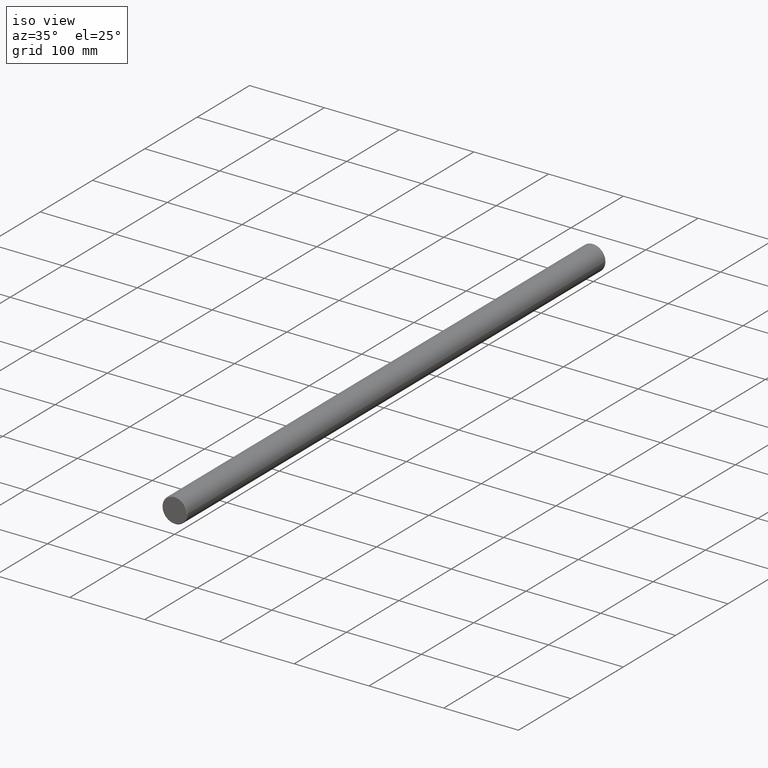
[diagram: clean part render]
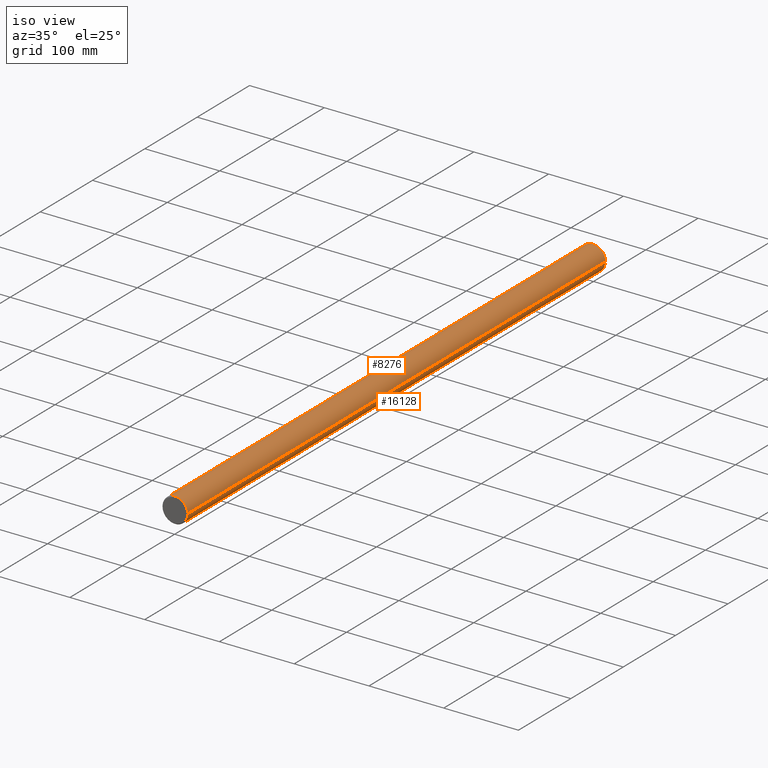
[diagram: same view with one multi-face feature highlighted, each face labeled with its STEP entity id]
A machine part, iso view. The highlighted faces form ONE feature: a constant-radius fillet chain: 2 tangent blend faces with common blend radius 16.85 mm. The faces share edges in the B-rep.
Their STEP definitions:
[1] entity #8276 (Cylinder):
#306 = ORIENTED_EDGE ( 'NONE', *, *, #13345, .T. ) ;
#746 = DIRECTION ( 'NONE',  ( -1.000000000000000000, 0.0000000000000000000, 0.0000000000000000000 ) ) ;
#996 = EDGE_CURVE ( 'NONE', #14909, #5115, #9176, .T. ) ;
#1112 = CARTESIAN_POINT ( 'NONE',  ( 6.704941225331760700E-014, -399.0000000000000000, 0.0000000000000000000 ) ) ;
#1167 = DIRECTION ( 'NONE',  ( -3.061616997868383600E-016, 1.000000000000000000, -0.0000000000000000000 ) ) ;
#1288 = AXIS2_PLACEMENT_3D ( 'NONE', #4371, #6885, #13147 ) ;
#1614 = CARTESIAN_POINT ( 'NONE',  ( 16.85000000000004100, -399.0000000000000000, 2.063529856563287100E-015 ) ) ;
#1859 = EDGE_CURVE ( 'NONE', #14909, #11980, #7615, .T. ) ;
#1868 = CARTESIAN_POINT ( 'NONE',  ( -16.85000000000027100, 400.0000000000000000, 0.0000000000000000000 ) ) ;
#1936 = DIRECTION ( 'NONE',  ( -3.061616997868383600E-016, 1.000000000000000000, -0.0000000000000000000 ) ) ;
#3646 = FACE_OUTER_BOUND ( 'NONE', #13549, .T. ) ;
#4371 = CARTESIAN_POINT ( 'NONE',  ( -1.775737858763662400E-013, 400.0000000000000000, 0.0000000000000000000 ) ) ;
#4399 = CARTESIAN_POINT ( 'NONE',  ( 16.84999999999991600, 400.0000000000000000, 2.063529856563301700E-015 ) ) ;
#4740 = VERTEX_POINT ( 'NONE', #9878 ) ;
#5034 = EDGE_CURVE ( 'NONE', #5115, #4740, #6611, .T. ) ;
#5098 = ORIENTED_EDGE ( 'NONE', *, *, #996, .F. ) ;
#5115 = VERTEX_POINT ( 'NONE', #8107 ) ;
#6611 = CIRCLE ( 'NONE', #10979, 16.85000000000021800 ) ;
#6861 = CARTESIAN_POINT ( 'NONE',  ( -1.772676241765793900E-013, 399.0000000000000000, 0.0000000000000000000 ) ) ;
#6885 = DIRECTION ( 'NONE',  ( -3.061616997868383600E-016, 1.000000000000000000, -0.0000000000000000000 ) ) ;
#7066 = VECTOR ( 'NONE', #9498, 1000.000000000000000 ) ;
#7279 = CARTESIAN_POINT ( 'NONE',  ( -16.84999999999990200, -399.0000000000000000, 0.0000000000000000000 ) ) ;
#7332 = AXIS2_PLACEMENT_3D ( 'NONE', #1112, #1167, #11127 ) ;
#7615 = CIRCLE ( 'NONE', #7332, 16.84999999999996900 ) ;
#8107 = CARTESIAN_POINT ( 'NONE',  ( -16.85000000000039600, 399.0000000000000000, 0.0000000000000000000 ) ) ;
#8276 = ADVANCED_FACE ( 'NONE', ( #3646 ), #13195, .T. ) ;
#9176 = LINE ( 'NONE', #1868, #7066 ) ;
#9498 = DIRECTION ( 'NONE',  ( -3.061616997868383600E-016, 1.000000000000000000, -0.0000000000000000000 ) ) ;
#9727 = ORIENTED_EDGE ( 'NONE', *, *, #5034, .F. ) ;
#9762 = ORIENTED_EDGE ( 'NONE', *, *, #1859, .T. ) ;
#9878 = CARTESIAN_POINT ( 'NONE',  ( 16.85000000000004100, 399.0000000000000000, 2.063529856563309200E-015 ) ) ;
#10979 = AXIS2_PLACEMENT_3D ( 'NONE', #6861, #1936, #746 ) ;
#11127 = DIRECTION ( 'NONE',  ( -1.000000000000000000, 0.0000000000000000000, 0.0000000000000000000 ) ) ;
#11980 = VERTEX_POINT ( 'NONE', #1614 ) ;
#12732 = LINE ( 'NONE', #4399, #13726 ) ;
#13147 = DIRECTION ( 'NONE',  ( -1.000000000000000000, 0.0000000000000000000, 0.0000000000000000000 ) ) ;
#13195 = CYLINDRICAL_SURFACE ( 'NONE', #1288, 16.85000000000009400 ) ;
#13345 = EDGE_CURVE ( 'NONE', #11980, #4740, #12732, .T. ) ;
#13549 = EDGE_LOOP ( 'NONE', ( #9762, #306, #9727, #5098 ) ) ;
#13726 = VECTOR ( 'NONE', #15625, 1000.000000000000000 ) ;
#14909 = VERTEX_POINT ( 'NONE', #7279 ) ;
#15625 = DIRECTION ( 'NONE',  ( -3.061616997868383600E-016, 1.000000000000000000, -0.0000000000000000000 ) ) ;
[2] entity #16128 (Cylinder):
#26 = VERTEX_POINT ( 'NONE', #12804 ) ;
#187 = CARTESIAN_POINT ( 'NONE',  ( 2.111181486685333100, -296.5271572055895600, -16.71880123224790200 ) ) ;
#294 = CARTESIAN_POINT ( 'NONE',  ( -4.103947168860153200, -299.0908941275207600, -16.34260954227791300 ) ) ;
#411 = CARTESIAN_POINT ( 'NONE',  ( 3.421433407392513400, -297.6624604103815300, -16.49916290399396600 ) ) ;
#650 = DIRECTION ( 'NONE',  ( -1.000000000000000000, 0.0000000000000000000, 0.0000000000000000000 ) ) ;
#652 = CARTESIAN_POINT ( 'NONE',  ( -2.457226800056763900, -303.2530992258033400, -16.67027337817341600 ) ) ;
#691 = CARTESIAN_POINT ( 'NONE',  ( -3.343415596068267000, 302.4374141581043300, -16.51520715119603000 ) ) ;
#739 = CARTESIAN_POINT ( 'NONE',  ( -2.112323123485771300, 296.5275863024637600, -16.71868724575025300 ) ) ;
#749 = CARTESIAN_POINT ( 'NONE',  ( 1.869556207913566400, 303.5959342370351200, -16.74793927532961700 ) ) ;
#996 = EDGE_CURVE ( 'NONE', #14909, #5115, #9176, .T. ) ;
#1104 = CARTESIAN_POINT ( 'NONE',  ( -3.652583352763586700, -302.0096524374241100, -16.45009180361355300 ) ) ;
#1357 = B_SPLINE_CURVE_WITH_KNOTS ( 'NONE', 3,
 ( #15121, #5309, #1480, #13968, #11625, #2726, #12666, #411, #15283, #10250, #14026, #2778, #9010, #187, #11398, #9113, #8902, #13915, #11511, #1642, #4099, #3936, #13866, #2669, #5148, #8956, #6564, #7759, #11449, #5252, #2887, #12822, #1432, #10363, #5362, #10143, #3988, #15230, #294, #10569, #9377, #2938 ),
 .UNSPECIFIED., .F., .F.,
 ( 4, 2, 2, 2, 2, 2, 2, 2, 2, 2, 2, 2, 2, 2, 2, 2, 2, 2, 2, 2, 4 ),
 ( 0.5000000000000000000, 0.5625000000000067700, 0.5781250000000085500, 0.5937500000000102100, 0.6093750000000118800, 0.6250000000000136600, 0.6562500000000126600, 0.6875000000000117700, 0.7187500000000108800, 0.7343750000000109900, 0.7500000000000111000, 0.7812500000000113200, 0.8125000000000115500, 0.8750000000000097700, 0.8906250000000093300, 0.9062500000000089900, 0.9218750000000086600, 0.9375000000000082200, 0.9531250000000077700, 0.9687500000000073300, 1.000000000000000000 ),
 .UNSPECIFIED. ) ;
#1386 = CARTESIAN_POINT ( 'NONE',  ( -1.775737858763662400E-013, 400.0000000000000000, 0.0000000000000000000 ) ) ;
#1432 = CARTESIAN_POINT ( 'NONE',  ( -3.649451941649635600, -297.9979308237474200, -16.45017936633611200 ) ) ;
#1480 = CARTESIAN_POINT ( 'NONE',  ( 4.099798510977332300, -298.9449125589744100, -16.34507024211131200 ) ) ;
#1614 = CARTESIAN_POINT ( 'NONE',  ( 16.85000000000004100, -399.0000000000000000, 2.063529856563287100E-015 ) ) ;
#1642 = CARTESIAN_POINT ( 'NONE',  ( 0.2747739666639554300, -296.0041477002215500, -16.84833002262523700 ) ) ;
#1781 = CARTESIAN_POINT ( 'NONE',  ( 3.574024045816244700, 302.1213676934745000, -16.46678278273489200 ) ) ;
#1868 = CARTESIAN_POINT ( 'NONE',  ( -16.85000000000027100, 400.0000000000000000, 0.0000000000000000000 ) ) ;
#1884 = CARTESIAN_POINT ( 'NONE',  ( -4.211731938987181700, 300.2623335797599700, -16.31514063911554400 ) ) ;
#1896 = CARTESIAN_POINT ( 'NONE',  ( 3.677872854701254500, -302.0199067356595000, -16.44516054835496600 ) ) ;
#1926 = CARTESIAN_POINT ( 'NONE',  ( -3.994873032400434900, 298.7055048424176700, -16.36995244405527600 ) ) ;
#1954 = CARTESIAN_POINT ( 'NONE',  ( -1.097146856392437800, -303.8730125779264900, -16.81645739557807700 ) ) ;
#1994 = CARTESIAN_POINT ( 'NONE',  ( -4.211731908247671200, 300.0000000000000600, -16.31514064705091000 ) ) ;
#2043 = CYLINDRICAL_SURFACE ( 'NONE', #10609, 16.85000000000009400 ) ;
#2130 = EDGE_CURVE ( 'NONE', #11980, #14909, #11303, .T. ) ;
#2247 = CARTESIAN_POINT ( 'NONE',  ( 0.6905363500577163000, 296.0497870226107000, -16.83639047889612400 ) ) ;
#2279 = CARTESIAN_POINT ( 'NONE',  ( 0.5520275914704813000, -303.9698644482218700, -16.84152510344907900 ) ) ;
#2415 = CARTESIAN_POINT ( 'NONE',  ( 3.989646332241385100, 298.7108447483342400, -16.37091737067779800 ) ) ;
#2614 = FACE_BOUND ( 'NONE', #5942, .T. ) ;
#2669 = CARTESIAN_POINT ( 'NONE',  ( -1.097480646680365900, -296.1271089799185500, -16.81642323779277600 ) ) ;
#2726 = CARTESIAN_POINT ( 'NONE',  ( 3.646142116068225500, -297.9924181663868700, -16.45091569020009500 ) ) ;
#2748 = DIRECTION ( 'NONE',  ( -1.000000000000000000, 0.0000000000000000000, 0.0000000000000000000 ) ) ;
#2778 = CARTESIAN_POINT ( 'NONE',  ( 2.781228554226494500, -296.9831026624416400, -16.62006782659087600 ) ) ;
#2849 = ORIENTED_EDGE ( 'NONE', *, *, #11010, .T. ) ;
#2887 = CARTESIAN_POINT ( 'NONE',  ( -3.425803771964347700, -297.6682079303274700, -16.49825689635584100 ) ) ;
#2938 = CARTESIAN_POINT ( 'NONE',  ( -4.211731908247676500, -299.9999999999999400, -16.31514064705086400 ) ) ;
#3126 = CARTESIAN_POINT ( 'NONE',  ( 3.835645768217373700, 301.6582906261951400, -16.40771981740229900 ) ) ;
#3182 = CARTESIAN_POINT ( 'NONE',  ( -3.167954837094653100, 302.6405675010050800, -16.54976003587597700 ) ) ;
#3195 = CARTESIAN_POINT ( 'NONE',  ( -1.360069311882699200, -303.7967521877352500, -16.79695426023073100 ) ) ;
#3235 = CARTESIAN_POINT ( 'NONE',  ( 3.646142115845147500, 302.0075818340083600, -16.45091569025041900 ) ) ;
#3337 = CARTESIAN_POINT ( 'NONE',  ( -0.5520148729234746200, 296.0235486262704400, -16.84316627419239900 ) ) ;
#3480 = CARTESIAN_POINT ( 'NONE',  ( 4.211730070169731600, -299.9962609295603200, -16.31514112154815500 ) ) ;
#3618 = CARTESIAN_POINT ( 'NONE',  ( 3.368925212262617200, 297.5413840653018800, -16.51454889790687400 ) ) ;
#3739 = CARTESIAN_POINT ( 'NONE',  ( -4.211731908247676500, -299.9999999999999400, -16.31514064705086400 ) ) ;
#3936 = CARTESIAN_POINT ( 'NONE',  ( -0.2800285627190733900, -295.9980360726415300, -16.84994530848567300 ) ) ;
#3988 = CARTESIAN_POINT ( 'NONE',  ( -3.989226575724543100, -298.7096218303249800, -16.37102020510795700 ) ) ;
#4099 = CARTESIAN_POINT ( 'NONE',  ( 0.1350485468165462100, -295.9977072282336500, -16.85002685795276300 ) ) ;
#4112 = VERTEX_POINT ( 'NONE', #9051 ) ;
#4295 = CARTESIAN_POINT ( 'NONE',  ( 3.776710975185721100, 301.7762612723548700, -16.42143214176458700 ) ) ;
#4318 = ORIENTED_EDGE ( 'NONE', *, *, #13345, .F. ) ;
#4399 = CARTESIAN_POINT ( 'NONE',  ( 16.84999999999991600, 400.0000000000000000, 2.063529856563301700E-015 ) ) ;
#4454 = CARTESIAN_POINT ( 'NONE',  ( -3.649451941342694000, 302.0020691769537400, -16.45017936640552100 ) ) ;
#4515 = CARTESIAN_POINT ( 'NONE',  ( 0.6869442775572899300, 303.9507671837440100, -16.83653606110369300 ) ) ;
#4558 = CARTESIAN_POINT ( 'NONE',  ( -3.783003678030937500, 298.2213061282358800, -16.42020818192132500 ) ) ;
#4614 = CARTESIAN_POINT ( 'NONE',  ( -0.2757959028349583100, 295.9978021208039000, -16.85000435249000700 ) ) ;
#4722 = CARTESIAN_POINT ( 'NONE',  ( -3.994873033460188100, -301.2944951553143400, -16.36995244380385700 ) ) ;
#4740 = VERTEX_POINT ( 'NONE', #9878 ) ;
#4811 = CARTESIAN_POINT ( 'NONE',  ( -2.879311326718003300, -302.9237658552129300, -16.60246212192669900 ) ) ;
#5115 = VERTEX_POINT ( 'NONE', #8107 ) ;
#5148 = CARTESIAN_POINT ( 'NONE',  ( -1.365344542615122500, -296.2049720826693100, -16.79652281685951100 ) ) ;
#5252 = CARTESIAN_POINT ( 'NONE',  ( -3.343415595765952400, -297.5625858413893100, -16.51520715125553500 ) ) ;
#5309 = CARTESIAN_POINT ( 'NONE',  ( 4.211286680376375100, -299.4730413855847900, -16.31525558198166700 ) ) ;
#5362 = CARTESIAN_POINT ( 'NONE',  ( -3.837042047219045800, -298.3445888232237200, -16.40739376037549500 ) ) ;
#5375 = VERTEX_POINT ( 'NONE', #11462 ) ;
#5558 = CARTESIAN_POINT ( 'NONE',  ( -3.942944516357560500, 301.4129517472178500, -16.38226633348003600 ) ) ;
#5600 = CARTESIAN_POINT ( 'NONE',  ( -4.183843855257118900, -300.5289064550839300, -16.32240945880809600 ) ) ;
#5615 = CARTESIAN_POINT ( 'NONE',  ( -3.837042047125988300, 301.6554111769892200, -16.40739376039762500 ) ) ;
#5666 = CARTESIAN_POINT ( 'NONE',  ( 0.2747739674841348000, 303.9958522996234900, -16.84833002260510100 ) ) ;
#5709 = CARTESIAN_POINT ( 'NONE',  ( -2.457226799433099600, 296.7469007739565500, -16.67027337826099000 ) ) ;
#5717 = CARTESIAN_POINT ( 'NONE',  ( 2.566736432232959300, 303.1837576114682500, -16.65494719288221500 ) ) ;
#5731 = CARTESIAN_POINT ( 'NONE',  ( 0.1382966407311987700, -304.0021776382146200, -16.84999782061066400 ) ) ;
#5770 = CARTESIAN_POINT ( 'NONE',  ( -3.989226575677383500, 301.2903781699001800, -16.37102020511962100 ) ) ;
#5813 = CARTESIAN_POINT ( 'NONE',  ( -1.360069313369782300, 296.2032478128508600, -16.79695426008766300 ) ) ;
#5942 = EDGE_LOOP ( 'NONE', ( #14973, #11686 ) ) ;
#5973 = CARTESIAN_POINT ( 'NONE',  ( 4.070030691089805000, 298.9622439762677000, -16.35111811429158000 ) ) ;
#6002 = CARTESIAN_POINT ( 'NONE',  ( -2.566103787678432700, -303.1762376375224300, -16.65380172238982200 ) ) ;
#6035 = B_SPLINE_CURVE_WITH_KNOTS ( 'NONE', 3,
 ( #3739, #6100, #5600, #12025, #4722, #14861, #1104, #11871, #14761, #16017, #14783, #4811, #14728, #6002, #652, #9746, #14393, #3195, #1954, #7374, #7321, #5731, #8568, #2279, #13529, #8238, #12278, #9366, #6932, #8517, #11006, #10951, #1896, #10666, #13475, #8126, #11940, #7270, #15985, #3480 ),
 .UNSPECIFIED., .F., .F.,
 ( 4, 2, 2, 2, 2, 2, 2, 2, 2, 2, 2, 2, 2, 2, 2, 2, 2, 2, 2, 4 ),
 ( 0.0000000000000000000, 0.03124999999999707900, 0.06249999999999415700, 0.09374999999999122900, 0.1093749999999897900, 0.1249999999999883400, 0.1406249999999868700, 0.1562499999999854300, 0.1874999999999859300, 0.2187499999999864800, 0.2499999999999870100, 0.2656249999999872900, 0.2812499999999875100, 0.3124999999999892900, 0.3437499999999910100, 0.3749999999999927300, 0.4374999999999961700, 0.4531249999999955600, 0.4687499999999949500, 0.5000000000000000000 ),
 .UNSPECIFIED. ) ;
#6100 = CARTESIAN_POINT ( 'NONE',  ( -4.211731877233189500, -300.2646802924342600, -16.31514065505721700 ) ) ;
#6136 = EDGE_CURVE ( 'NONE', #7399, #5375, #7727, .T. ) ;
#6417 = ORIENTED_EDGE ( 'NONE', *, *, #2130, .T. ) ;
#6564 = CARTESIAN_POINT ( 'NONE',  ( -2.592800542262584200, -296.8033723857111600, -16.65397137311018500 ) ) ;
#6593 = CARTESIAN_POINT ( 'NONE',  ( 4.211286680376009200, 300.5269586149625000, -16.31525558198171300 ) ) ;
#6738 = FACE_OUTER_BOUND ( 'NONE', #8279, .T. ) ;
#6810 = CARTESIAN_POINT ( 'NONE',  ( 3.074238659154786100, 302.7387534980939600, -16.56748029647851400 ) ) ;
#6864 = CARTESIAN_POINT ( 'NONE',  ( -4.103947168852170300, 300.9091058725173300, -16.34260954227997700 ) ) ;
#6893 = EDGE_CURVE ( 'NONE', #26, #4112, #6035, .T. ) ;
#6918 = CARTESIAN_POINT ( 'NONE',  ( -0.2800285560951958400, 304.0019639276731000, -16.84994530848697300 ) ) ;
#6930 = DIRECTION ( 'NONE',  ( -3.061616997868383600E-016, 1.000000000000000000, -0.0000000000000000000 ) ) ;
#6932 = CARTESIAN_POINT ( 'NONE',  ( 2.116314076581926600, -303.4700144356096400, -16.71814975680066700 ) ) ;
#6964 = CARTESIAN_POINT ( 'NONE',  ( -4.075885968895653900, 298.9583794951362300, -16.34970193963102900 ) ) ;
#6976 = CARTESIAN_POINT ( 'NONE',  ( -4.184601887960512000, 300.5237576506187300, -16.32221440564561000 ) ) ;
#7028 = CARTESIAN_POINT ( 'NONE',  ( -2.566103789862940400, 296.8237623640256400, -16.65380172203901000 ) ) ;
#7066 = VECTOR ( 'NONE', #9498, 1000.000000000000000 ) ;
#7081 = CARTESIAN_POINT ( 'NONE',  ( -4.183843855718064800, 299.4710935466394500, -16.32240945869161700 ) ) ;
#7182 = CARTESIAN_POINT ( 'NONE',  ( -2.777870329694211500, 296.9889213583802000, -16.61979051879845700 ) ) ;
#7235 = CARTESIAN_POINT ( 'NONE',  ( 1.870609913084710300, 296.4045933130740300, -16.74781125527563600 ) ) ;
#7270 = CARTESIAN_POINT ( 'NONE',  ( 4.185015913676439300, -300.5221823758678300, -16.32211057644185500 ) ) ;
#7279 = CARTESIAN_POINT ( 'NONE',  ( -16.84999999999990200, -399.0000000000000000, 0.0000000000000000000 ) ) ;
#7321 = CARTESIAN_POINT ( 'NONE',  ( -0.2757959077698745000, -304.0021978795078900, -16.85000435249007800 ) ) ;
#7344 = CARTESIAN_POINT ( 'NONE',  ( 4.211730070169751100, 300.0037390704396200, -16.31514112154810200 ) ) ;
#7374 = CARTESIAN_POINT ( 'NONE',  ( -0.5520148696959600300, -303.9764513740315700, -16.84316627435052600 ) ) ;
#7399 = VERTEX_POINT ( 'NONE', #15855 ) ;
#7400 = CARTESIAN_POINT ( 'NONE',  ( 2.783036976765235000, 296.9846195971642300, -16.61976461273604500 ) ) ;
#7727 = B_SPLINE_CURVE_WITH_KNOTS ( 'NONE', 3,
 ( #8267, #10812, #7081, #6964, #1926, #4558, #14425, #13172, #8375, #10699, #9608, #14639, #7182, #7028, #5709, #739, #13286, #5813, #8215, #3337, #4614, #12083, #13340, #9821, #2247, #13550, #8481, #7235, #11021, #9874, #7400, #3618, #10974, #12354, #2415, #5973, #16063, #13442, #16008, #7344 ),
 .UNSPECIFIED., .F., .F.,
 ( 4, 2, 2, 2, 2, 2, 2, 2, 2, 2, 2, 2, 2, 2, 2, 2, 2, 2, 2, 4 ),
 ( 0.0000000000000000000, 0.03124999999999923700, 0.06249999999999847300, 0.09374999999999771000, 0.1093749999999973400, 0.1249999999999969700, 0.1406249999999965900, 0.1562499999999962000, 0.1874999999999954800, 0.2187499999999947500, 0.2499999999999940600, 0.2656249999999936700, 0.2812499999999932800, 0.3124999999999937300, 0.3437499999999942300, 0.3749999999999946700, 0.4374999999999911700, 0.4531249999999918400, 0.4687499999999924500, 0.5000000000000000000 ),
 .UNSPECIFIED. ) ;
#7759 = CARTESIAN_POINT ( 'NONE',  ( -3.076975924927034500, -297.2640654838056100, -16.56696710261696400 ) ) ;
#8107 = CARTESIAN_POINT ( 'NONE',  ( -16.85000000000039600, 399.0000000000000000, 0.0000000000000000000 ) ) ;
#8109 = CARTESIAN_POINT ( 'NONE',  ( 0.1350485435046242200, 304.0022927716089500, -16.85002685795210600 ) ) ;
#8126 = CARTESIAN_POINT ( 'NONE',  ( 4.070030691137408700, -301.0377560235054400, -16.35111811427989500 ) ) ;
#8167 = CARTESIAN_POINT ( 'NONE',  ( -2.125748108832351300, 303.4942039916982100, -16.72312987456216100 ) ) ;
#8215 = CARTESIAN_POINT ( 'NONE',  ( -1.097146853164901800, 296.1269874217713900, -16.81645739573622600 ) ) ;
#8224 = CARTESIAN_POINT ( 'NONE',  ( 3.165549653021565200, 302.6431096412110300, -16.55021605181869000 ) ) ;
#8238 = CARTESIAN_POINT ( 'NONE',  ( 1.096819130879199700, -303.8729821233462800, -16.81645108304907100 ) ) ;
#8267 = CARTESIAN_POINT ( 'NONE',  ( -4.211731908247671200, 300.0000000000000600, -16.31514064705091000 ) ) ;
#8279 = EDGE_LOOP ( 'NONE', ( #4318, #6417, #9077, #12692 ) ) ;
#8375 = CARTESIAN_POINT ( 'NONE',  ( -3.341774473356414500, 297.5605835245967800, -16.51553835158221500 ) ) ;
#8481 = CARTESIAN_POINT ( 'NONE',  ( 1.359696503220244600, 296.2030086396124500, -16.79701130285975800 ) ) ;
#8517 = CARTESIAN_POINT ( 'NONE',  ( 2.571482479504557900, -303.1803078003434300, -16.65421251272945100 ) ) ;
#8568 = CARTESIAN_POINT ( 'NONE',  ( 0.2749665287091289100, -303.9958346357527100, -16.84832619816995000 ) ) ;
#8635 = EDGE_CURVE ( 'NONE', #4740, #5115, #14364, .T. ) ;
#8869 = FACE_BOUND ( 'NONE', #13171, .T. ) ;
#8902 = CARTESIAN_POINT ( 'NONE',  ( 1.092724771750999100, -296.1259879554684200, -16.81671217814151100 ) ) ;
#8956 = CARTESIAN_POINT ( 'NONE',  ( -2.125748114341859700, -296.5057960107914100, -16.72312987403037000 ) ) ;
#9010 = CARTESIAN_POINT ( 'NONE',  ( 2.566736438452071700, -296.8162423924782200, -16.65494719201052100 ) ) ;
#9051 = CARTESIAN_POINT ( 'NONE',  ( 4.211730070169731600, -299.9962609295603200, -16.31514112154815500 ) ) ;
#9077 = ORIENTED_EDGE ( 'NONE', *, *, #996, .T. ) ;
#9113 = CARTESIAN_POINT ( 'NONE',  ( 1.357293242190989100, -296.2021730081117400, -16.79721600268887400 ) ) ;
#9176 = LINE ( 'NONE', #1868, #7066 ) ;
#9351 = CARTESIAN_POINT ( 'NONE',  ( -3.578748845347892200, 302.1142035424703600, -16.46575746220369400 ) ) ;
#9366 = CARTESIAN_POINT ( 'NONE',  ( 1.870609915822458100, -303.5954066856897400, -16.74781125501201400 ) ) ;
#9377 = CARTESIAN_POINT ( 'NONE',  ( -4.211731938987186100, -299.7376664201617000, -16.31514063911549100 ) ) ;
#9391 = ORIENTED_EDGE ( 'NONE', *, *, #6893, .T. ) ;
#9403 = CARTESIAN_POINT ( 'NONE',  ( -3.425803771740272300, 302.3317920699138900, -16.49825689640349000 ) ) ;
#9460 = CARTESIAN_POINT ( 'NONE',  ( -3.076975926074878100, 302.7359345150246100, -16.56696710241074700 ) ) ;
#9498 = DIRECTION ( 'NONE',  ( -3.061616997868383600E-016, 1.000000000000000000, -0.0000000000000000000 ) ) ;
#9608 = CARTESIAN_POINT ( 'NONE',  ( -3.073013874974670500, 297.2600589085209300, -16.56770255498300400 ) ) ;
#9746 = CARTESIAN_POINT ( 'NONE',  ( -2.112323122238555200, -303.4724136980166200, -16.71868724592529500 ) ) ;
#9821 = CARTESIAN_POINT ( 'NONE',  ( 0.5520275898696536100, 296.0301355515520100, -16.84152510348836900 ) ) ;
#9874 = CARTESIAN_POINT ( 'NONE',  ( 2.571482479507090500, 296.8196921995031500, -16.65421251272906400 ) ) ;
#9878 = CARTESIAN_POINT ( 'NONE',  ( 16.85000000000004100, 399.0000000000000000, 2.063529856563309200E-015 ) ) ;
#9992 = DIRECTION ( 'NONE',  ( -3.061616997868383600E-016, 1.000000000000000000, -0.0000000000000000000 ) ) ;
#10143 = CARTESIAN_POINT ( 'NONE',  ( -3.942944516264483800, -298.5870482525691600, -16.38226633350208100 ) ) ;
#10167 = CARTESIAN_POINT ( 'NONE',  ( -1.772676241765793900E-013, 399.0000000000000000, 0.0000000000000000000 ) ) ;
#10226 = CARTESIAN_POINT ( 'NONE',  ( 4.211730070169751100, 300.0037390704396200, -16.31514112154810200 ) ) ;
#10250 = CARTESIAN_POINT ( 'NONE',  ( 3.165549652640385700, -297.3568903582710700, -16.55021605189371000 ) ) ;
#10363 = CARTESIAN_POINT ( 'NONE',  ( -3.778863592179800600, -298.2279180770635800, -16.42093452306349400 ) ) ;
#10488 = CARTESIAN_POINT ( 'NONE',  ( -1.097480643418780300, 303.8728910210130600, -16.81642323795280800 ) ) ;
#10569 = CARTESIAN_POINT ( 'NONE',  ( -4.184601887944555900, -299.4762423493049300, -16.32221440564960300 ) ) ;
#10609 = AXIS2_PLACEMENT_3D ( 'NONE', #1386, #9992, #13669 ) ;
#10655 = CARTESIAN_POINT ( 'NONE',  ( 1.092724771740884800, 303.8740120443779300, -16.81671217814199100 ) ) ;
#10666 = CARTESIAN_POINT ( 'NONE',  ( 3.943095795867154000, -301.4125843570395200, -16.38223024138962500 ) ) ;
#10699 = CARTESIAN_POINT ( 'NONE',  ( -3.166655777989681100, 297.3580324217032300, -16.55000769960799500 ) ) ;
#10812 = CARTESIAN_POINT ( 'NONE',  ( -4.211731877233183300, 299.7353197074494300, -16.31514065505726000 ) ) ;
#10951 = CARTESIAN_POINT ( 'NONE',  ( 3.368925216828674100, -302.4586159294258300, -16.51454889708693600 ) ) ;
#10974 = CARTESIAN_POINT ( 'NONE',  ( 3.677872855448571800, 297.9800932663617900, -16.44516054817760400 ) ) ;
#11006 = CARTESIAN_POINT ( 'NONE',  ( 2.783036974482174600, -303.0153804054718900, -16.61976461314607400 ) ) ;
#11010 = EDGE_CURVE ( 'NONE', #4112, #26, #1357, .T. ) ;
#11021 = CARTESIAN_POINT ( 'NONE',  ( 2.116314076579441900, 296.5299855645438900, -16.71814975680099000 ) ) ;
#11303 = CIRCLE ( 'NONE', #14849, 16.84999999999996900 ) ;
#11398 = CARTESIAN_POINT ( 'NONE',  ( 1.869556211022509500, -296.4040657640185800, -16.74793927503056800 ) ) ;
#11449 = CARTESIAN_POINT ( 'NONE',  ( -3.167954837396979300, -297.3594324995012800, -16.54976003581640500 ) ) ;
#11462 = CARTESIAN_POINT ( 'NONE',  ( 4.211730070169751100, 300.0037390704396200, -16.31514112154810200 ) ) ;
#11511 = CARTESIAN_POINT ( 'NONE',  ( 0.5520010403882879000, -296.0301326776418600, -16.84152665691151200 ) ) ;
#11534 = DIRECTION ( 'NONE',  ( -3.061616997868383600E-016, 1.000000000000000000, -0.0000000000000000000 ) ) ;
#11625 = CARTESIAN_POINT ( 'NONE',  ( 3.776710974962599600, -298.2237387272497200, -16.42143214181500700 ) ) ;
#11686 = ORIENTED_EDGE ( 'NONE', *, *, #12101, .T. ) ;
#11811 = CARTESIAN_POINT ( 'NONE',  ( -1.365344545369881600, 303.7950279160859300, -16.79652281659364400 ) ) ;
#11867 = CARTESIAN_POINT ( 'NONE',  ( 2.781228556084602400, 303.0168973361068700, -16.62006782625735800 ) ) ;
#11871 = CARTESIAN_POINT ( 'NONE',  ( -3.423453887775302000, -302.3348839834259800, -16.49874419015969500 ) ) ;
#11924 = CARTESIAN_POINT ( 'NONE',  ( -2.592800537671176900, 303.1966276189690500, -16.65397137393527400 ) ) ;
#11940 = CARTESIAN_POINT ( 'NONE',  ( 4.103373155838955500, -300.9116456906783700, -16.34275425718604800 ) ) ;
#11980 = VERTEX_POINT ( 'NONE', #1614 ) ;
#12025 = CARTESIAN_POINT ( 'NONE',  ( -4.075885969356611400, -301.0416205031402200, -16.34970193951445300 ) ) ;
#12083 = CARTESIAN_POINT ( 'NONE',  ( 0.1382966382637571800, 295.9978223616296300, -16.84999782061070300 ) ) ;
#12101 = EDGE_CURVE ( 'NONE', #5375, #7399, #13754, .T. ) ;
#12278 = CARTESIAN_POINT ( 'NONE',  ( 1.359696500482448400, -303.7969913616237200, -16.79701130312342600 ) ) ;
#12354 = CARTESIAN_POINT ( 'NONE',  ( 3.943095795680350500, 298.5874156424552600, -16.38223024143390200 ) ) ;
#12666 = CARTESIAN_POINT ( 'NONE',  ( 3.574024045214516700, -297.8786323057505600, -16.46678278286262300 ) ) ;
#12692 = ORIENTED_EDGE ( 'NONE', *, *, #8635, .F. ) ;
#12732 = LINE ( 'NONE', #4399, #13726 ) ;
#12804 = CARTESIAN_POINT ( 'NONE',  ( -4.211731908247676500, -299.9999999999999400, -16.31514064705086400 ) ) ;
#12822 = CARTESIAN_POINT ( 'NONE',  ( -3.578748845123801600, -297.8857964572883400, -16.46575746225126500 ) ) ;
#12995 = AXIS2_PLACEMENT_3D ( 'NONE', #10167, #11534, #2748 ) ;
#13089 = CARTESIAN_POINT ( 'NONE',  ( 6.704941225331760700E-014, -399.0000000000000000, 0.0000000000000000000 ) ) ;
#13129 = CARTESIAN_POINT ( 'NONE',  ( 1.357293245299952700, 303.7978269908344900, -16.79721600238979200 ) ) ;
#13171 = EDGE_LOOP ( 'NONE', ( #9391, #2849 ) ) ;
#13172 = CARTESIAN_POINT ( 'NONE',  ( -3.423453887772689900, 297.6651160167259600, -16.49874419016028800 ) ) ;
#13182 = CARTESIAN_POINT ( 'NONE',  ( -4.070027994387141100, 301.0378539588748500, -16.35111933029144600 ) ) ;
#13239 = CARTESIAN_POINT ( 'NONE',  ( 3.339483625520050000, 302.4422006625123900, -16.51599845854028800 ) ) ;
#13286 = CARTESIAN_POINT ( 'NONE',  ( -1.867474881315293500, 296.4032647785747400, -16.74813418026927500 ) ) ;
#13340 = CARTESIAN_POINT ( 'NONE',  ( 0.2749665303099790300, 296.0041653644734100, -16.84832619813065000 ) ) ;
#13345 = EDGE_CURVE ( 'NONE', #11980, #4740, #12732, .T. ) ;
#13442 = CARTESIAN_POINT ( 'NONE',  ( 4.185015913652223100, 299.4778176240168400, -16.32211057644793000 ) ) ;
#13475 = CARTESIAN_POINT ( 'NONE',  ( 3.989646332193739200, -301.2891552518925100, -16.37091737068957200 ) ) ;
#13529 = CARTESIAN_POINT ( 'NONE',  ( 0.6905363500642531800, -303.9502129774654100, -16.83639047889581500 ) ) ;
#13550 = CARTESIAN_POINT ( 'NONE',  ( 1.096819130892215100, 296.1270178765012700, -16.81645108304841300 ) ) ;
#13669 = DIRECTION ( 'NONE',  ( -1.000000000000000000, 0.0000000000000000000, 0.0000000000000000000 ) ) ;
#13726 = VECTOR ( 'NONE', #15625, 1000.000000000000000 ) ;
#13754 = B_SPLINE_CURVE_WITH_KNOTS ( 'NONE', 3,
 ( #10226, #6593, #15573, #3126, #4295, #3235, #1781, #15629, #13239, #8224, #6810, #11867, #5717, #14435, #749, #13129, #10655, #4515, #14328, #5666, #8109, #6918, #14378, #10488, #11811, #8167, #11924, #9460, #3182, #691, #9403, #9351, #4454, #15684, #5615, #5558, #5770, #13182, #6864, #6976, #1884, #1994 ),
 .UNSPECIFIED., .F., .F.,
 ( 4, 2, 2, 2, 2, 2, 2, 2, 2, 2, 2, 2, 2, 2, 2, 2, 2, 2, 2, 2, 4 ),
 ( 0.5000000000000000000, 0.5625000000000036600, 0.5781250000000060000, 0.5937500000000084400, 0.6093750000000108800, 0.6250000000000133200, 0.6562500000000137700, 0.6875000000000143200, 0.7187500000000148800, 0.7343750000000151000, 0.7500000000000154300, 0.7812500000000159900, 0.8125000000000166500, 0.8750000000000177600, 0.8906250000000146500, 0.9062500000000117700, 0.9218750000000086600, 0.9375000000000055500, 0.9531250000000026600, 0.9687499999999995600, 1.000000000000000000 ),
 .UNSPECIFIED. ) ;
#13866 = CARTESIAN_POINT ( 'NONE',  ( -0.5538761365771002200, -296.0238437861538000, -16.84309281301226600 ) ) ;
#13915 = CARTESIAN_POINT ( 'NONE',  ( 0.6869442775522168800, -296.0492328163327300, -16.83653606110393900 ) ) ;
#13968 = CARTESIAN_POINT ( 'NONE',  ( 3.835645768064069200, -298.3417093735325200, -16.40771981743870400 ) ) ;
#14026 = CARTESIAN_POINT ( 'NONE',  ( 3.074238660083829200, -297.2612465026319900, -16.56748029631181800 ) ) ;
#14328 = CARTESIAN_POINT ( 'NONE',  ( 0.5520010395681305100, 303.9698673225131500, -16.84152665693164200 ) ) ;
#14364 = CIRCLE ( 'NONE', #12995, 16.85000000000021800 ) ;
#14378 = CARTESIAN_POINT ( 'NONE',  ( -0.5538761398386663500, 303.9761562129144200, -16.84309281285224500 ) ) ;
#14393 = CARTESIAN_POINT ( 'NONE',  ( -1.867474882802367500, -303.5967352208388700, -16.74813418012617600 ) ) ;
#14425 = CARTESIAN_POINT ( 'NONE',  ( -3.652583352768791900, 297.9903475622717800, -16.45009180361249100 ) ) ;
#14435 = CARTESIAN_POINT ( 'NONE',  ( 2.111181492904491600, 303.4728427904639700, -16.71880123137614800 ) ) ;
#14639 = CARTESIAN_POINT ( 'NONE',  ( -2.879311326723333700, 297.0762341449471400, -16.60246212192577500 ) ) ;
#14728 = CARTESIAN_POINT ( 'NONE',  ( -2.777870331878705000, -303.0110786400718400, -16.61979051844758400 ) ) ;
#14761 = CARTESIAN_POINT ( 'NONE',  ( -3.341774473351227100, -302.4394164755645400, -16.51553835158319200 ) ) ;
#14783 = CARTESIAN_POINT ( 'NONE',  ( -3.073013874979985800, -302.7399410913191100, -16.56770255498202000 ) ) ;
#14849 = AXIS2_PLACEMENT_3D ( 'NONE', #13089, #6930, #650 ) ;
#14861 = CARTESIAN_POINT ( 'NONE',  ( -3.783003676971195900, -301.7786938740321100, -16.42020818217265800 ) ) ;
#14909 = VERTEX_POINT ( 'NONE', #7279 ) ;
#14973 = ORIENTED_EDGE ( 'NONE', *, *, #6136, .T. ) ;
#15121 = CARTESIAN_POINT ( 'NONE',  ( 4.211730070169731600, -299.9962609295603200, -16.31514112154815500 ) ) ;
#15230 = CARTESIAN_POINT ( 'NONE',  ( -4.070027994339962000, -298.9621460409003400, -16.35111933030301800 ) ) ;
#15283 = CARTESIAN_POINT ( 'NONE',  ( 3.339483625901186000, -297.5577993380057400, -16.51599845846535100 ) ) ;
#15573 = CARTESIAN_POINT ( 'NONE',  ( 4.099798510364147200, 301.0550874421147100, -16.34507024225670300 ) ) ;
#15625 = DIRECTION ( 'NONE',  ( -3.061616997868383600E-016, 1.000000000000000000, -0.0000000000000000000 ) ) ;
#15629 = CARTESIAN_POINT ( 'NONE',  ( 3.421433406790829000, 302.3375395903935300, -16.49916290412160800 ) ) ;
#15684 = CARTESIAN_POINT ( 'NONE',  ( -3.778863592486761300, 301.7720819222354300, -16.42093452299417300 ) ) ;
#15855 = CARTESIAN_POINT ( 'NONE',  ( -4.211731908247671200, 300.0000000000000600, -16.31514064705091000 ) ) ;
#15985 = CARTESIAN_POINT ( 'NONE',  ( 4.211951765066411100, -300.2578707015482000, -16.31508389133140800 ) ) ;
#16008 = CARTESIAN_POINT ( 'NONE',  ( 4.211951765066624300, 299.7421292981782700, -16.31508389133130900 ) ) ;
#16017 = CARTESIAN_POINT ( 'NONE',  ( -3.166655777994968900, -302.6419675781353900, -16.55000769960691200 ) ) ;
#16063 = CARTESIAN_POINT ( 'NONE',  ( 4.103373155851070200, 299.0883543093793800, -16.34275425718294300 ) ) ;
#16128 = ADVANCED_FACE ( 'NONE', ( #6738, #2614, #8869 ), #2043, .T. ) ;